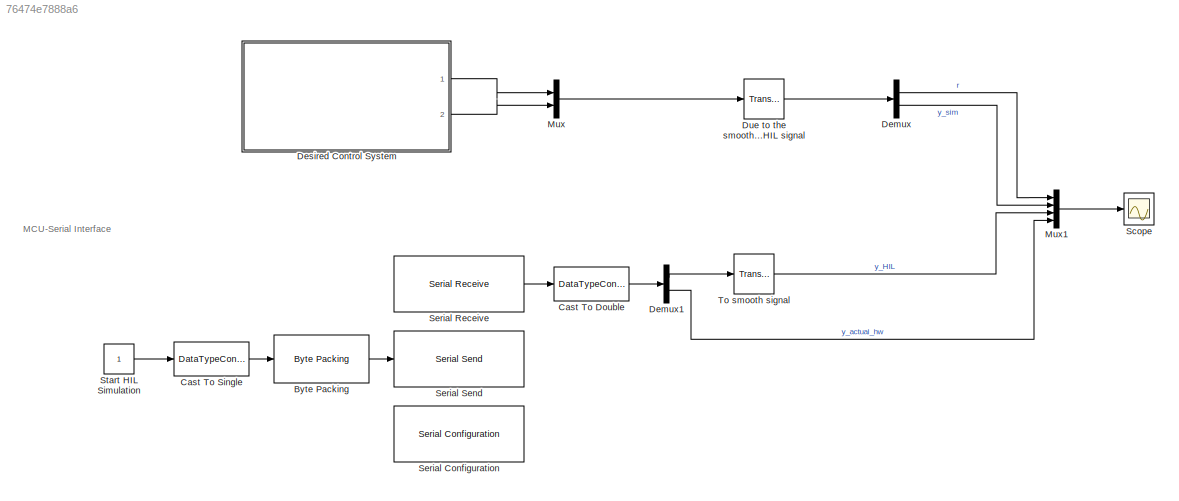
MODEL slx_76474e7888a6
KIND model
CONFIG AbsTol = auto
CONFIG EnableMultiTasking = off
CONFIG FixedStep = sample_time
CONFIG InitFcn = SampleTime
CONFIG MaxStep = auto
CONFIG MinStep = auto
CONFIG RelTol = 1e-3
CONFIG SampleTimeConstraint = Unconstrained
CONFIG SolverName = FixedStepAuto
CONFIG StartTime = 0.0
CONFIG StopTime = Inf
BLOCK [Reference] Byte Packing  REF=slrealtimeutilitieslib/Byte Packing
  Ports = [1, 1]
  SourceBlock = slrealtimeutilitieslib/Byte Packing
  SourceProductBaseCode = XP
  SourceType = slrealtimebytepacking
BLOCK [DataTypeConversion] Cast To Double
  OutDataTypeStr = double
  RndMeth = Floor
  SaturateOnIntegerOverflow = off
BLOCK [DataTypeConversion] Cast To Single
  OutDataTypeStr = single
  RndMeth = Floor
  SaturateOnIntegerOverflow = off
BLOCK [Demux] Demux
  Outputs = 2
  Ports = [1, 2]
BLOCK [Demux] Demux1
  Outputs = 2
  Ports = [1, 2]
BLOCK [ModelReference] Desired Control System
  ModelNameDialog = ControlSystemModel.slx
  ModelReferenceVersion = 1.12
  Ports = [0, 2]
BLOCK [TransportDelay] Due to the smoothed y_HIL signal
  DelayTime = sample_time
  Ports = [1, 1]
BLOCK [Mux] Mux
  DisplayOption = bar
  Inputs = 2
  Ports = [2, 1]
BLOCK [Mux] Mux1
  DisplayOption = bar
  Ports = [4, 1]
BLOCK [Scope] Scope
  Floating = off
  NumInputPorts = 1
  Ports = [1]
  ScopeSpecificationString = Simulink.scopes.TimeScopeBlockCfg('CurrentConfiguration', extmgr.ConfigurationSet(extmgr.Configuration('Core','General UI',true),extmgr.Configuration('Core','Source UI',true),extmgr.Configuration('Sources','WiredSimulink',true),extmgr.Configuration('Visuals','Time Domain',true,'SerializedDisplays',{struct('MinYLimReal','0.8592','MaxYLimReal','1.56974','YLabelReal','','MinYLimMag','0.8592','MaxYLim...<+1833ch>
BLOCK [Reference] Serial Configuration  REF=instrumentseriallib/Serial Configuration
  Ports = []
  Priority = -200000
  SourceBlock = instrumentseriallib/Serial Configuration
  SourceProductBaseCode = IC
  SourceType = matlabshared.seriallib.internal.system.SerialConfiguration
BLOCK [Reference] Serial Receive  REF=instrumentseriallib/Serial Receive
  Ports = [0, 1]
  Priority = 1
  SourceBlock = instrumentseriallib/Serial Receive
  SourceProductBaseCode = IC
  SourceType = matlabshared.seriallib.internal.system.SerialReceive
BLOCK [Reference] Serial Send  REF=instrumentseriallib/Serial Send
  Ports = [1]
  Priority = 1
  SourceBlock = instrumentseriallib/Serial Send
  SourceProductBaseCode = IC
  SourceType = matlabshared.seriallib.internal.system.SerialSend
BLOCK [Constant] Start HIL Simulation
BLOCK [TransportDelay] To smooth signal
  DelayTime = sample_time
  Ports = [1, 1]
ANNOTATION (root): MCU-Serial Interface
LINE Byte Packing:1 -> Serial Send:1
LINE Cast To Double:1 -> Demux1:1
LINE Cast To Single:1 -> Byte Packing:1
LINE Demux1:1 -> To smooth signal:1
LINE Demux1:2 -> Mux1:4
LINE Demux:1 -> Mux1:1
LINE Demux:2 -> Mux1:2
LINE Desired Control System:1 -> Mux:1
LINE Desired Control System:2 -> Mux:2
LINE Due to the smoothed y_HIL signal:1 -> Demux:1
LINE Mux1:1 -> Scope:1
LINE Mux:1 -> Due to the smoothed y_HIL signal:1
LINE Serial Receive:1 -> Cast To Double:1
LINE Start HIL Simulation:1 -> Cast To Single:1
LINE To smooth signal:1 -> Mux1:3
